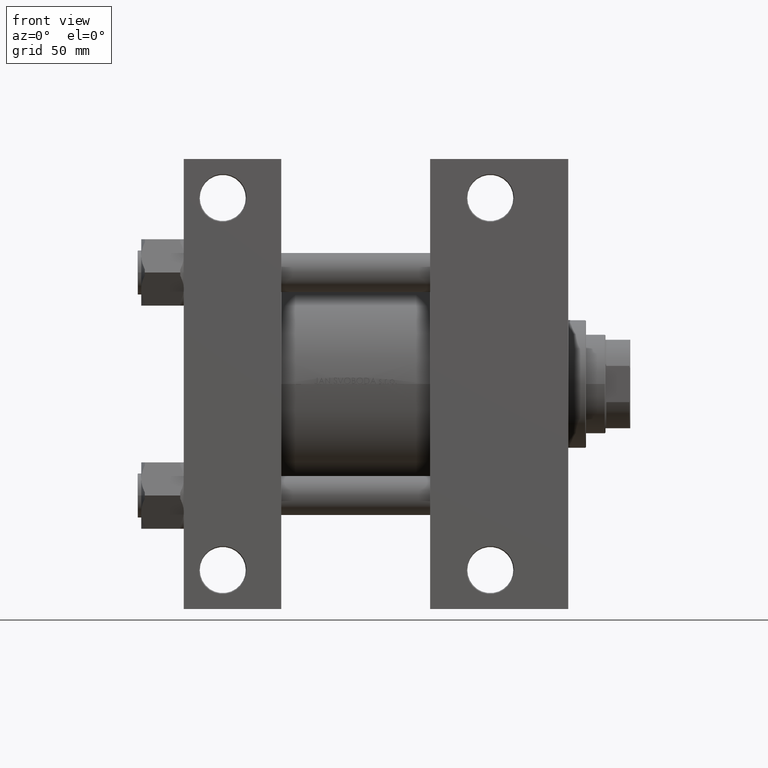
[diagram: clean part render]
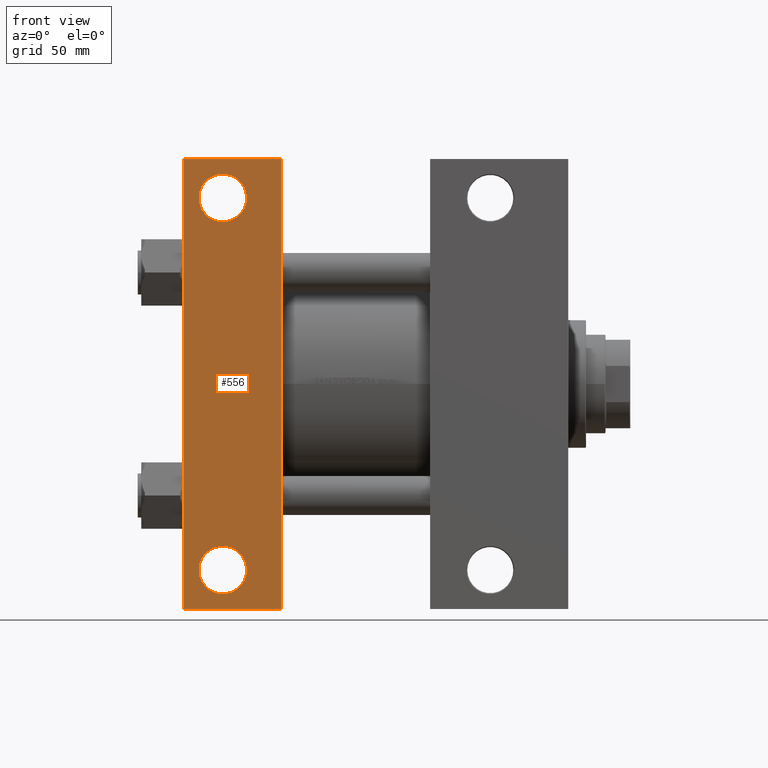
[diagram: same view with one face highlighted and labeled with its STEP entity id]
A machine part, front view. The second image highlights one B-rep face of the part: STEP entity #556.
In plain terms, the highlighted planar face has unit normal (0, -1, -0).
Its self-contained STEP definition (entity closure, byte-faithful):
#556 = ADVANCED_FACE ( 'NONE', ( #35211, #31077, #16014 ), #4595, .T. ) ;
#917 = DIRECTION ( 'NONE',  ( -0.000000000000000000, -1.682156097916903588E-16, 1.000000000000000000 ) ) ;
#1301 = VERTEX_POINT ( 'NONE', #38633 ) ;
#2660 = CARTESIAN_POINT ( 'NONE',  ( -4.696407624884288264E-16, -127.0000000000000000, -82.49999999999995737 ) ) ;
#3128 = VECTOR ( 'NONE', #20000, 1000.000000000000000 ) ;
#3328 = VERTEX_POINT ( 'NONE', #16781 ) ;
#4595 = PLANE ( 'NONE',  #13088 ) ;
#4697 = LINE ( 'NONE', #16118, #3128 ) ;
#5029 = ORIENTED_EDGE ( 'NONE', *, *, #47902, .T. ) ;
#6067 = CIRCLE ( 'NONE', #33238, 13.49949999999992833 ) ;
#6618 = ORIENTED_EDGE ( 'NONE', *, *, #14004, .T. ) ;
#6642 = DIRECTION ( 'NONE',  ( -0.000000000000000000, -1.682156097916903588E-16, 1.000000000000000000 ) ) ;
#6847 = ORIENTED_EDGE ( 'NONE', *, *, #38600, .T. ) ;
#8293 = EDGE_LOOP ( 'NONE', ( #32312, #32937, #29004, #46984 ) ) ;
#9115 = CARTESIAN_POINT ( 'NONE',  ( 22.00000000000000000, -105.0000000000000142, -82.50000000000000000 ) ) ;
#9358 = DIRECTION ( 'NONE',  ( 0.000000000000000000, 1.000000000000000000, 0.000000000000000000 ) ) ;
#10978 = VERTEX_POINT ( 'NONE', #18416 ) ;
#11647 = VERTEX_POINT ( 'NONE', #13387 ) ;
#11741 = CIRCLE ( 'NONE', #15635, 13.49949999999992833 ) ;
#13055 = EDGE_CURVE ( 'NONE', #11647, #3328, #26916, .T. ) ;
#13088 = AXIS2_PLACEMENT_3D ( 'NONE', #45927, #45685, #42266 ) ;
#13387 = CARTESIAN_POINT ( 'NONE',  ( 55.00000000000002842, 127.0000000000000000, -82.50000000000001421 ) ) ;
#14004 = EDGE_CURVE ( 'NONE', #28237, #10978, #11741, .T. ) ;
#15635 = AXIS2_PLACEMENT_3D ( 'NONE', #9115, #38782, #9358 ) ;
#16014 = FACE_OUTER_BOUND ( 'NONE', #8293, .T. ) ;
#16118 = CARTESIAN_POINT ( 'NONE',  ( 3.063638793585435255E-14, 127.0000000000000000, -82.50000000000001421 ) ) ;
#16781 = CARTESIAN_POINT ( 'NONE',  ( 55.00000000000000000, -127.0000000000000000, -82.49999999999995737 ) ) ;
#17299 = DIRECTION ( 'NONE',  ( 0.000000000000000000, -1.000000000000000000, -1.682156097916903588E-16 ) ) ;
#18409 = CARTESIAN_POINT ( 'NONE',  ( 22.00000000000000000, 104.9999999999999858, -82.49999999999997158 ) ) ;
#18416 = CARTESIAN_POINT ( 'NONE',  ( 35.49949999999992656, -105.0000000000000142, -82.50000000000000000 ) ) ;
#19385 = CARTESIAN_POINT ( 'NONE',  ( 22.00000000000000000, -105.0000000000000142, -82.50000000000000000 ) ) ;
#20000 = DIRECTION ( 'NONE',  ( 1.000000000000000000, 0.000000000000000000, 0.000000000000000000 ) ) ;
#20096 = CARTESIAN_POINT ( 'NONE',  ( 55.00000000000000000, 82.50000000000002842, -82.49999999999997158 ) ) ;
#20097 = EDGE_CURVE ( 'NONE', #20701, #26403, #39902, .T. ) ;
#20701 = VERTEX_POINT ( 'NONE', #36622 ) ;
#21223 = CARTESIAN_POINT ( 'NONE',  ( 22.00000000000000000, 104.9999999999999858, -82.49999999999997158 ) ) ;
#21418 = CARTESIAN_POINT ( 'NONE',  ( 0.000000000000000000, 82.50000000000002842, -82.49999999999997158 ) ) ;
#21775 = CARTESIAN_POINT ( 'NONE',  ( -4.696407624884288264E-16, -127.0000000000000000, -82.49999999999995737 ) ) ;
#22087 = EDGE_LOOP ( 'NONE', ( #24539, #5029 ) ) ;
#23265 = EDGE_LOOP ( 'NONE', ( #6618, #6847 ) ) ;
#24291 = LINE ( 'NONE', #2660, #46298 ) ;
#24539 = ORIENTED_EDGE ( 'NONE', *, *, #29881, .T. ) ;
#26403 = VERTEX_POINT ( 'NONE', #21775 ) ;
#26916 = LINE ( 'NONE', #20096, #40448 ) ;
#27541 = AXIS2_PLACEMENT_3D ( 'NONE', #21223, #6642, #32888 ) ;
#28237 = VERTEX_POINT ( 'NONE', #37428 ) ;
#29004 = ORIENTED_EDGE ( 'NONE', *, *, #13055, .T. ) ;
#29881 = EDGE_CURVE ( 'NONE', #38776, #1301, #43855, .T. ) ;
#31077 = FACE_BOUND ( 'NONE', #23265, .T. ) ;
#32312 = ORIENTED_EDGE ( 'NONE', *, *, #20097, .F. ) ;
#32642 = AXIS2_PLACEMENT_3D ( 'NONE', #18409, #41006, #48088 ) ;
#32888 = DIRECTION ( 'NONE',  ( 0.000000000000000000, 1.000000000000000000, 0.000000000000000000 ) ) ;
#32937 = ORIENTED_EDGE ( 'NONE', *, *, #46135, .T. ) ;
#33238 = AXIS2_PLACEMENT_3D ( 'NONE', #19385, #917, #41743 ) ;
#33776 = EDGE_CURVE ( 'NONE', #3328, #26403, #24291, .T. ) ;
#34448 = VECTOR ( 'NONE', #17299, 1000.000000000000000 ) ;
#34694 = DIRECTION ( 'NONE',  ( 0.000000000000000000, -1.000000000000000000, -1.682156097916903588E-16 ) ) ;
#35211 = FACE_BOUND ( 'NONE', #22087, .T. ) ;
#36622 = CARTESIAN_POINT ( 'NONE',  ( 3.063638793585435255E-14, 127.0000000000000000, -82.50000000000001421 ) ) ;
#37293 = CIRCLE ( 'NONE', #32642, 13.49950000000001182 ) ;
#37428 = CARTESIAN_POINT ( 'NONE',  ( 8.500500000000069889, -105.0000000000000142, -82.50000000000000000 ) ) ;
#38501 = CARTESIAN_POINT ( 'NONE',  ( 8.500499999999986400, 104.9999999999999858, -82.49999999999997158 ) ) ;
#38600 = EDGE_CURVE ( 'NONE', #10978, #28237, #6067, .T. ) ;
#38633 = CARTESIAN_POINT ( 'NONE',  ( 35.49950000000001182, 104.9999999999999858, -82.49999999999997158 ) ) ;
#38776 = VERTEX_POINT ( 'NONE', #38501 ) ;
#38782 = DIRECTION ( 'NONE',  ( -0.000000000000000000, -1.682156097916903588E-16, 1.000000000000000000 ) ) ;
#39902 = LINE ( 'NONE', #21418, #34448 ) ;
#40448 = VECTOR ( 'NONE', #34694, 1000.000000000000000 ) ;
#41006 = DIRECTION ( 'NONE',  ( -0.000000000000000000, -1.682156097916903588E-16, 1.000000000000000000 ) ) ;
#41743 = DIRECTION ( 'NONE',  ( 0.000000000000000000, 1.000000000000000000, 0.000000000000000000 ) ) ;
#42266 = DIRECTION ( 'NONE',  ( 0.000000000000000000, 1.000000000000000000, 1.682156097916903588E-16 ) ) ;
#43500 = DIRECTION ( 'NONE',  ( -1.000000000000000000, -0.000000000000000000, -0.000000000000000000 ) ) ;
#43855 = CIRCLE ( 'NONE', #27541, 13.49950000000001182 ) ;
#45685 = DIRECTION ( 'NONE',  ( 0.000000000000000000, 1.682156097916903588E-16, -1.000000000000000000 ) ) ;
#45927 = CARTESIAN_POINT ( 'NONE',  ( 55.00000000000000000, 82.50000000000002842, -82.49999999999997158 ) ) ;
#46135 = EDGE_CURVE ( 'NONE', #20701, #11647, #4697, .T. ) ;
#46298 = VECTOR ( 'NONE', #43500, 1000.000000000000000 ) ;
#46984 = ORIENTED_EDGE ( 'NONE', *, *, #33776, .T. ) ;
#47902 = EDGE_CURVE ( 'NONE', #1301, #38776, #37293, .T. ) ;
#48088 = DIRECTION ( 'NONE',  ( 0.000000000000000000, 1.000000000000000000, 0.000000000000000000 ) ) ;